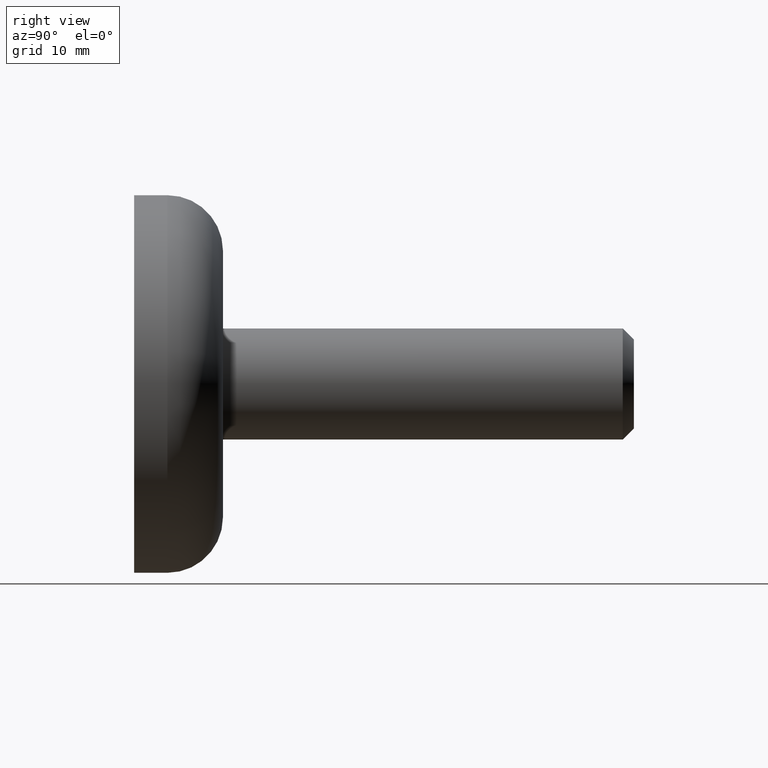
[diagram: clean part render]
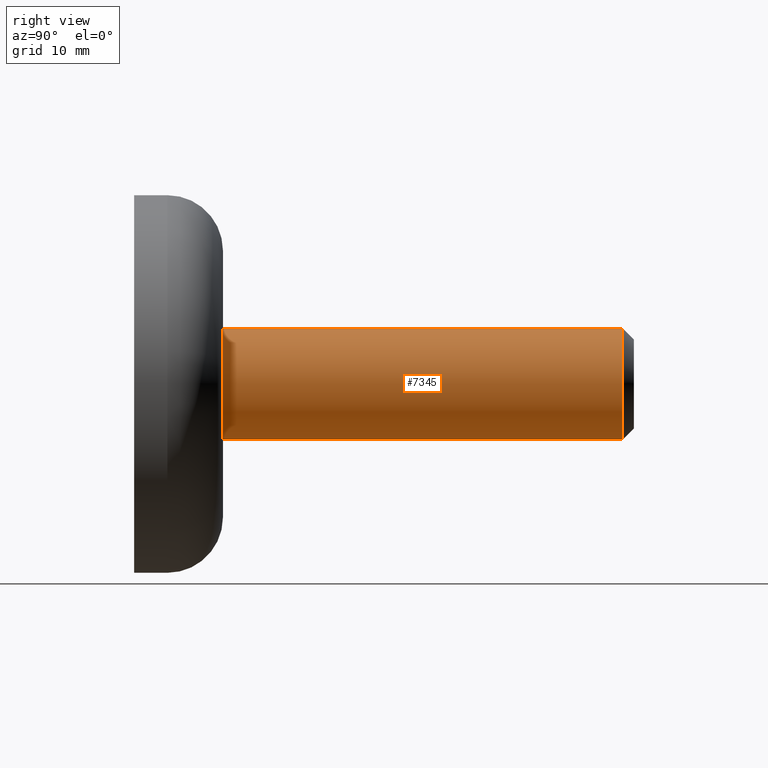
[diagram: same view with one face highlighted and labeled with its STEP entity id]
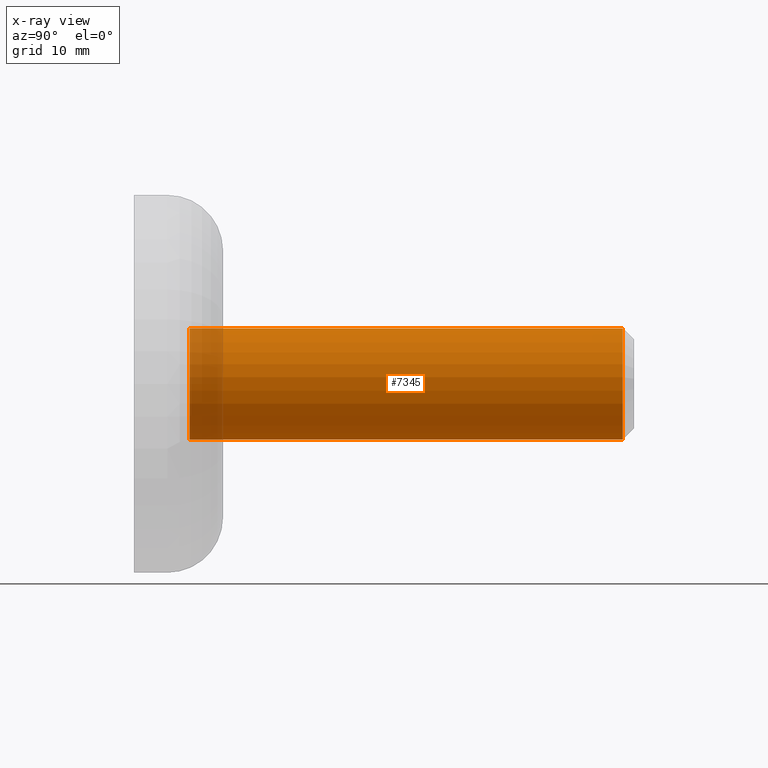
[diagram: x-ray of the same camera — body ghosted, the highlighted face saturated]
A machine part, right view. The second image highlights one B-rep face of the part: STEP entity #7345.
The next image is the same camera in x-ray: the body ghosted, the highlighted face saturated — about 8% of this face is hidden behind the body in this view.
In plain terms, the highlighted cylindrical surface (partial cylindrical patch) has radius 5 mm, axis along (-0, -1, -0).
Its self-contained STEP definition (entity closure, byte-faithful):
#150 = CIRCLE ( 'NONE', #5121, 5.000000000000003553 ) ;
#613 = DIRECTION ( 'NONE',  ( -0.000000000000000000, -1.000000000000000000, -0.000000000000000000 ) ) ;
#1543 = ORIENTED_EDGE ( 'NONE', *, *, #7299, .F. ) ;
#2605 = VERTEX_POINT ( 'NONE', #6199 ) ;
#2930 = DIRECTION ( 'NONE',  ( 0.000000000000000000, 0.000000000000000000, -1.000000000000000000 ) ) ;
#2964 = EDGE_CURVE ( 'NONE', #5492, #2605, #7820, .T. ) ;
#3651 = CARTESIAN_POINT ( 'NONE',  ( 6.123233995736768255E-16, 44.00000000000000000, 5.000000000000001776 ) ) ;
#3812 = AXIS2_PLACEMENT_3D ( 'NONE', #11976, #11014, #6222 ) ;
#4020 = ORIENTED_EDGE ( 'NONE', *, *, #2964, .F. ) ;
#4306 = EDGE_CURVE ( 'NONE', #5492, #9615, #8504, .T. ) ;
#5121 = AXIS2_PLACEMENT_3D ( 'NONE', #11619, #5867, #9332 ) ;
#5492 = VERTEX_POINT ( 'NONE', #8655 ) ;
#5669 = EDGE_LOOP ( 'NONE', ( #9327, #14828, #1543, #4020 ) ) ;
#5867 = DIRECTION ( 'NONE',  ( -0.000000000000000000, -1.000000000000000000, -0.000000000000000000 ) ) ;
#6199 = CARTESIAN_POINT ( 'NONE',  ( 0.000000000000000000, 4.999999999999998224, -5.000000000000003553 ) ) ;
#6222 = DIRECTION ( 'NONE',  ( 0.000000000000000000, 0.000000000000000000, 1.000000000000000000 ) ) ;
#6752 = CARTESIAN_POINT ( 'NONE',  ( 6.123233995736771213E-16, 4.999999999999998224, 5.000000000000004441 ) ) ;
#6859 = DIRECTION ( 'NONE',  ( -0.000000000000000000, -1.000000000000000000, -0.000000000000000000 ) ) ;
#7134 = AXIS2_PLACEMENT_3D ( 'NONE', #8620, #613, #2930 ) ;
#7299 = EDGE_CURVE ( 'NONE', #2605, #14121, #150, .T. ) ;
#7345 = ADVANCED_FACE ( 'NONE', ( #12617 ), #14894, .T. ) ;
#7820 = LINE ( 'NONE', #10239, #13567 ) ;
#8504 = CIRCLE ( 'NONE', #3812, 5.000000000000001776 ) ;
#8620 = CARTESIAN_POINT ( 'NONE',  ( 0.000000000000000000, 0.000000000000000000, 0.000000000000000000 ) ) ;
#8655 = CARTESIAN_POINT ( 'NONE',  ( 0.000000000000000000, 44.00000000000000000, -5.000000000000001776 ) ) ;
#9230 = EDGE_CURVE ( 'NONE', #9615, #14121, #11416, .T. ) ;
#9327 = ORIENTED_EDGE ( 'NONE', *, *, #4306, .T. ) ;
#9332 = DIRECTION ( 'NONE',  ( 0.000000000000000000, 0.000000000000000000, -1.000000000000000000 ) ) ;
#9615 = VERTEX_POINT ( 'NONE', #3651 ) ;
#9636 = CARTESIAN_POINT ( 'NONE',  ( 6.123233995736768255E-16, 0.000000000000000000, 5.000000000000001776 ) ) ;
#9762 = VECTOR ( 'NONE', #11922, 1000.000000000000000 ) ;
#10239 = CARTESIAN_POINT ( 'NONE',  ( 0.000000000000000000, 0.000000000000000000, -5.000000000000001776 ) ) ;
#11014 = DIRECTION ( 'NONE',  ( -0.000000000000000000, -1.000000000000000000, -0.000000000000000000 ) ) ;
#11416 = LINE ( 'NONE', #9636, #9762 ) ;
#11619 = CARTESIAN_POINT ( 'NONE',  ( 0.000000000000000000, 4.999999999999998224, 0.000000000000000000 ) ) ;
#11922 = DIRECTION ( 'NONE',  ( -0.000000000000000000, -1.000000000000000000, -0.000000000000000000 ) ) ;
#11976 = CARTESIAN_POINT ( 'NONE',  ( 0.000000000000000000, 44.00000000000000000, 0.000000000000000000 ) ) ;
#12617 = FACE_OUTER_BOUND ( 'NONE', #5669, .T. ) ;
#13567 = VECTOR ( 'NONE', #6859, 1000.000000000000000 ) ;
#14121 = VERTEX_POINT ( 'NONE', #6752 ) ;
#14828 = ORIENTED_EDGE ( 'NONE', *, *, #9230, .T. ) ;
#14894 = CYLINDRICAL_SURFACE ( 'NONE', #7134, 5.000000000000001776 ) ;